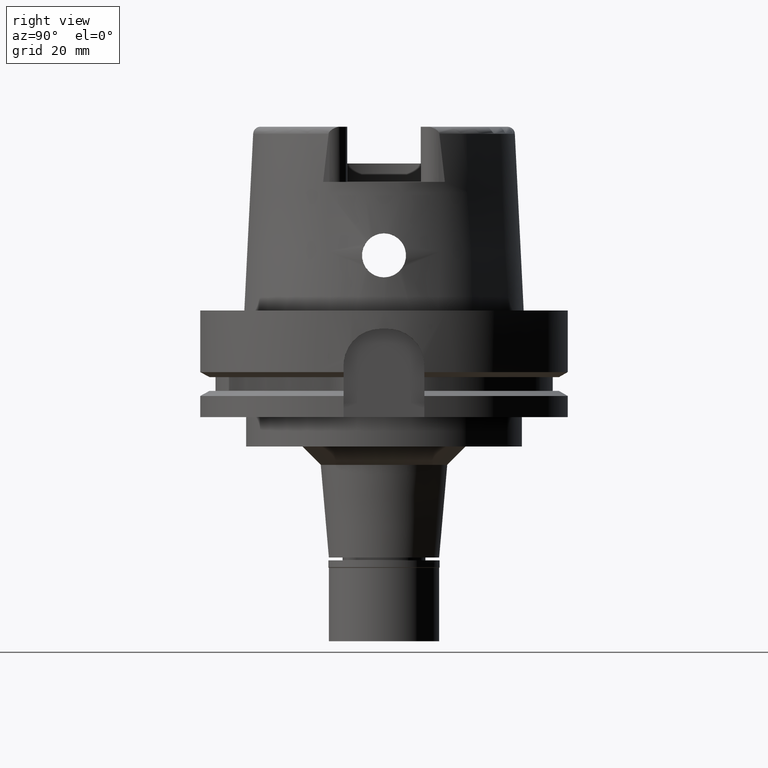
[diagram: clean part render]
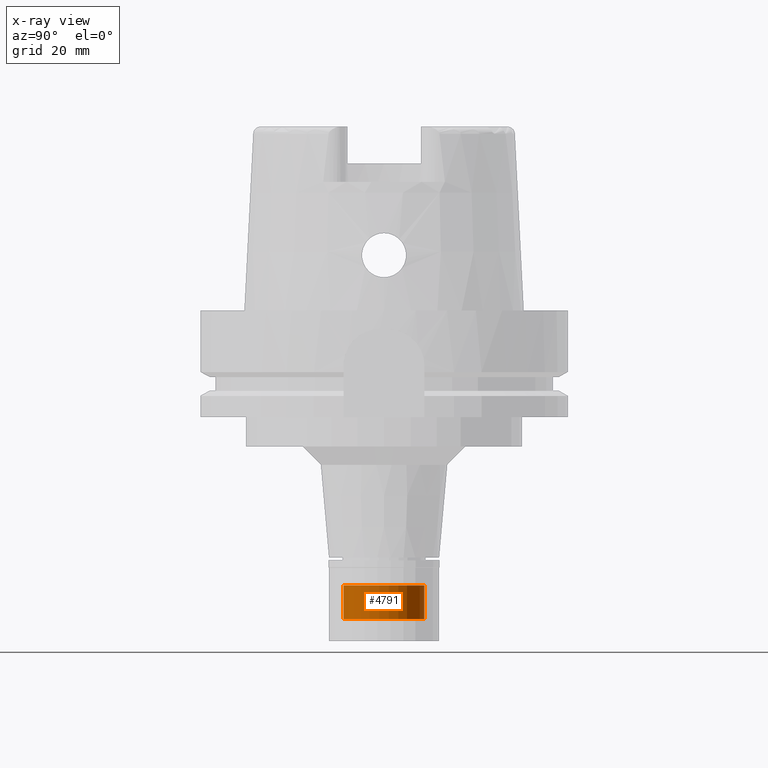
[diagram: x-ray — body ghosted, one internal face saturated and labeled with its STEP entity id]
A machine part, right view, then the same camera in x-ray: the body is ghosted and one INTERNAL B-rep face — a face not visible from any outside direction — is saturated and labeled: STEP entity #4791.
In plain terms, the highlighted cylindrical surface (partial cylindrical patch) has radius 11 mm, axis along (0, 0, -1).
Its self-contained STEP definition (entity closure, byte-faithful):
#133 = ORIENTED_EDGE ( 'NONE', *, *, #3255, .T. ) ;
#189 = CARTESIAN_POINT ( 'NONE',  ( 0.0000000000000000000, 0.0000000000000000000, 0.0000000000000000000 ) ) ;
#275 = ORIENTED_EDGE ( 'NONE', *, *, #1835, .T. ) ;
#303 = CARTESIAN_POINT ( 'NONE',  ( 0.0000000000000000000, 0.0000000000000000000, -16.00000000000000000 ) ) ;
#423 = AXIS2_PLACEMENT_3D ( 'NONE', #189, #3165, #4900 ) ;
#446 = DIRECTION ( 'NONE',  ( 0.0000000000000000000, -1.000000000000000000, 0.0000000000000000000 ) ) ;
#521 = EDGE_CURVE ( 'NONE', #2047, #2517, #3116, .T. ) ;
#778 = DIRECTION ( 'NONE',  ( 0.0000000000000000000, 0.0000000000000000000, 1.000000000000000000 ) ) ;
#964 = CARTESIAN_POINT ( 'NONE',  ( 0.0000000000000000000, 11.00000000000000000, -16.00000000000000000 ) ) ;
#1427 = CARTESIAN_POINT ( 'NONE',  ( 0.0000000000000000000, 11.00000000000000000, -6.799999999999999822 ) ) ;
#1668 = DIRECTION ( 'NONE',  ( 0.0000000000000000000, 1.000000000000000000, 0.0000000000000000000 ) ) ;
#1835 = EDGE_CURVE ( 'NONE', #3241, #4991, #2128, .T. ) ;
#1887 = VECTOR ( 'NONE', #2579, 1000.000000000000000 ) ;
#2047 = VERTEX_POINT ( 'NONE', #2682 ) ;
#2128 = LINE ( 'NONE', #5249, #1887 ) ;
#2376 = FACE_OUTER_BOUND ( 'NONE', #4192, .T. ) ;
#2415 = AXIS2_PLACEMENT_3D ( 'NONE', #303, #3747, #1668 ) ;
#2439 = CYLINDRICAL_SURFACE ( 'NONE', #423, 11.00000000000000000 ) ;
#2464 = CARTESIAN_POINT ( 'NONE',  ( 0.0000000000000000000, -11.00000000000000000, -6.799999999999999822 ) ) ;
#2516 = VECTOR ( 'NONE', #3148, 1000.000000000000000 ) ;
#2517 = VERTEX_POINT ( 'NONE', #1427 ) ;
#2579 = DIRECTION ( 'NONE',  ( 0.0000000000000000000, 0.0000000000000000000, 1.000000000000000000 ) ) ;
#2682 = CARTESIAN_POINT ( 'NONE',  ( 0.0000000000000000000, 11.00000000000000000, -16.00000000000000000 ) ) ;
#2943 = ORIENTED_EDGE ( 'NONE', *, *, #521, .F. ) ;
#3116 = LINE ( 'NONE', #964, #2516 ) ;
#3148 = DIRECTION ( 'NONE',  ( 0.0000000000000000000, 0.0000000000000000000, 1.000000000000000000 ) ) ;
#3165 = DIRECTION ( 'NONE',  ( 0.0000000000000000000, 0.0000000000000000000, -1.000000000000000000 ) ) ;
#3209 = AXIS2_PLACEMENT_3D ( 'NONE', #4317, #778, #446 ) ;
#3241 = VERTEX_POINT ( 'NONE', #3893 ) ;
#3255 = EDGE_CURVE ( 'NONE', #4991, #2517, #3566, .T. ) ;
#3566 = CIRCLE ( 'NONE', #3209, 11.00000000000000000 ) ;
#3747 = DIRECTION ( 'NONE',  ( 0.0000000000000000000, 0.0000000000000000000, -1.000000000000000000 ) ) ;
#3893 = CARTESIAN_POINT ( 'NONE',  ( 0.0000000000000000000, -11.00000000000000000, -16.00000000000000000 ) ) ;
#4192 = EDGE_LOOP ( 'NONE', ( #5538, #275, #133, #2943 ) ) ;
#4317 = CARTESIAN_POINT ( 'NONE',  ( 0.0000000000000000000, 0.0000000000000000000, -6.799999999999999822 ) ) ;
#4791 = ADVANCED_FACE ( 'NONE', ( #2376 ), #2439, .F. ) ;
#4900 = DIRECTION ( 'NONE',  ( 0.0000000000000000000, -1.000000000000000000, 0.0000000000000000000 ) ) ;
#4991 = VERTEX_POINT ( 'NONE', #2464 ) ;
#5142 = CIRCLE ( 'NONE', #2415, 11.00000000000000000 ) ;
#5249 = CARTESIAN_POINT ( 'NONE',  ( 0.0000000000000000000, -11.00000000000000000, -16.00000000000000000 ) ) ;
#5497 = EDGE_CURVE ( 'NONE', #2047, #3241, #5142, .T. ) ;
#5538 = ORIENTED_EDGE ( 'NONE', *, *, #5497, .T. ) ;